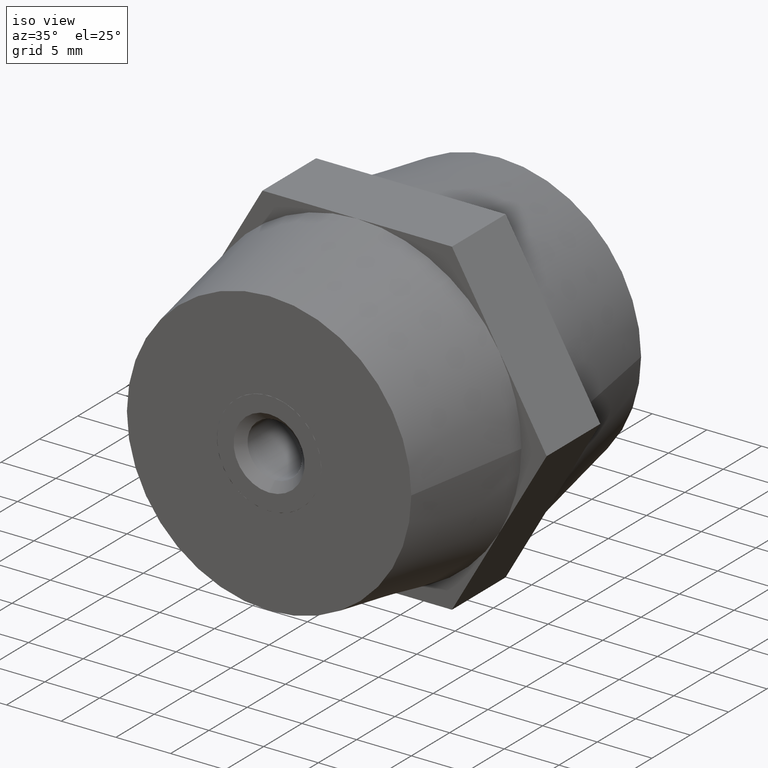
[diagram: clean part render]
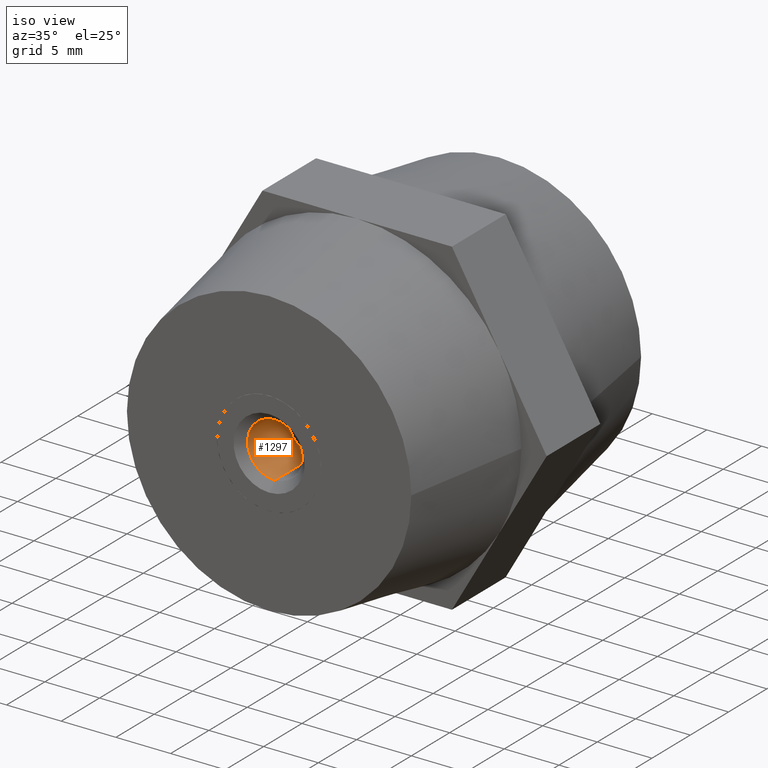
[diagram: same view with one face highlighted and labeled with its STEP entity id]
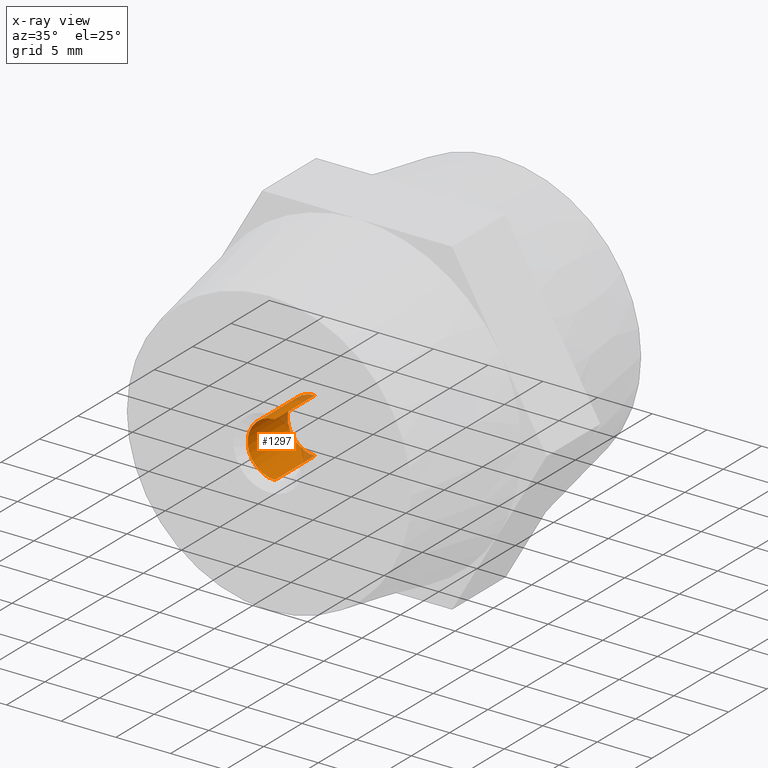
[diagram: x-ray of the same camera — body ghosted, the highlighted face saturated]
A machine part, iso view. The second image highlights one B-rep face of the part: STEP entity #1297.
The next image is the same camera in x-ray: the body ghosted, the highlighted face saturated — about 9% of this face is hidden behind the body in this view.
In plain terms, the highlighted cylindrical surface (edge-blend (fillet) strip) has radius 2.5 mm, axis along (0, -1, -0).
Its self-contained STEP definition (entity closure, byte-faithful):
#150 = ORIENTED_EDGE ( 'NONE', *, *, #2132, .F. ) ;
#283 = VERTEX_POINT ( 'NONE', #459 ) ;
#374 = LINE ( 'NONE', #2402, #2498 ) ;
#431 = CARTESIAN_POINT ( 'NONE',  ( 3.061616997868383100E-016, 2.000000000000000000, -2.500000000000000000 ) ) ;
#459 = CARTESIAN_POINT ( 'NONE',  ( 3.061616997868383100E-016, 7.250000000000000000, -2.500000000000000000 ) ) ;
#616 = ORIENTED_EDGE ( 'NONE', *, *, #2771, .T. ) ;
#619 = VERTEX_POINT ( 'NONE', #1988 ) ;
#758 = DIRECTION ( 'NONE',  ( 0.0000000000000000000, 1.000000000000000000, 0.0000000000000000000 ) ) ;
#875 = CIRCLE ( 'NONE', #3231, 2.500000000000000000 ) ;
#1093 = CARTESIAN_POINT ( 'NONE',  ( 0.0000000000000000000, 7.250000000000000000, 0.0000000000000000000 ) ) ;
#1129 = DIRECTION ( 'NONE',  ( 0.0000000000000000000, 1.000000000000000000, 0.0000000000000000000 ) ) ;
#1227 = DIRECTION ( 'NONE',  ( 0.0000000000000000000, 1.000000000000000000, 0.0000000000000000000 ) ) ;
#1275 = CIRCLE ( 'NONE', #2811, 2.500000000000000000 ) ;
#1297 = ADVANCED_FACE ( 'NONE', ( #2416 ), #3182, .F. ) ;
#1351 = CARTESIAN_POINT ( 'NONE',  ( 0.0000000000000000000, 8.000000000000000000, 2.500000000000000000 ) ) ;
#1369 = DIRECTION ( 'NONE',  ( 0.0000000000000000000, 0.0000000000000000000, 1.000000000000000000 ) ) ;
#1408 = DIRECTION ( 'NONE',  ( 0.0000000000000000000, 1.000000000000000000, 0.0000000000000000000 ) ) ;
#1519 = CARTESIAN_POINT ( 'NONE',  ( 0.0000000000000000000, 2.000000000000000000, 0.0000000000000000000 ) ) ;
#1540 = VERTEX_POINT ( 'NONE', #431 ) ;
#1609 = LINE ( 'NONE', #1351, #2315 ) ;
#1620 = CARTESIAN_POINT ( 'NONE',  ( 0.0000000000000000000, 7.250000000000000000, 2.500000000000000000 ) ) ;
#1792 = DIRECTION ( 'NONE',  ( 0.0000000000000000000, 0.0000000000000000000, 1.000000000000000000 ) ) ;
#1988 = CARTESIAN_POINT ( 'NONE',  ( 0.0000000000000000000, 2.000000000000000000, 2.500000000000000000 ) ) ;
#2132 = EDGE_CURVE ( 'NONE', #619, #1540, #875, .T. ) ;
#2315 = VECTOR ( 'NONE', #1129, 1000.000000000000000 ) ;
#2338 = DIRECTION ( 'NONE',  ( 0.0000000000000000000, 0.0000000000000000000, 1.000000000000000000 ) ) ;
#2402 = CARTESIAN_POINT ( 'NONE',  ( 3.061616997868383100E-016, 8.000000000000000000, -2.500000000000000000 ) ) ;
#2409 = DIRECTION ( 'NONE',  ( 0.0000000000000000000, 1.000000000000000000, 0.0000000000000000000 ) ) ;
#2416 = FACE_OUTER_BOUND ( 'NONE', #2905, .T. ) ;
#2498 = VECTOR ( 'NONE', #1227, 1000.000000000000000 ) ;
#2688 = VERTEX_POINT ( 'NONE', #1620 ) ;
#2771 = EDGE_CURVE ( 'NONE', #619, #2688, #1609, .T. ) ;
#2811 = AXIS2_PLACEMENT_3D ( 'NONE', #1093, #1408, #2338 ) ;
#2905 = EDGE_LOOP ( 'NONE', ( #3652, #150, #616, #3657 ) ) ;
#3112 = AXIS2_PLACEMENT_3D ( 'NONE', #3747, #758, #1369 ) ;
#3182 = CYLINDRICAL_SURFACE ( 'NONE', #3112, 2.500000000000000000 ) ;
#3231 = AXIS2_PLACEMENT_3D ( 'NONE', #1519, #2409, #1792 ) ;
#3392 = EDGE_CURVE ( 'NONE', #1540, #283, #374, .T. ) ;
#3652 = ORIENTED_EDGE ( 'NONE', *, *, #3392, .F. ) ;
#3657 = ORIENTED_EDGE ( 'NONE', *, *, #3770, .T. ) ;
#3747 = CARTESIAN_POINT ( 'NONE',  ( 0.0000000000000000000, 8.000000000000000000, 0.0000000000000000000 ) ) ;
#3770 = EDGE_CURVE ( 'NONE', #2688, #283, #1275, .T. ) ;